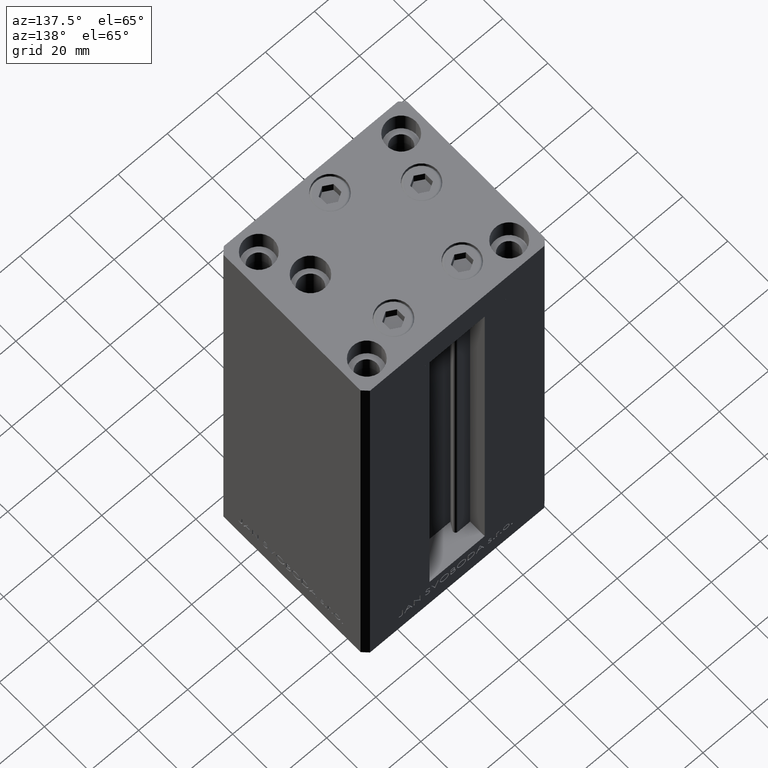
[diagram: clean part render]
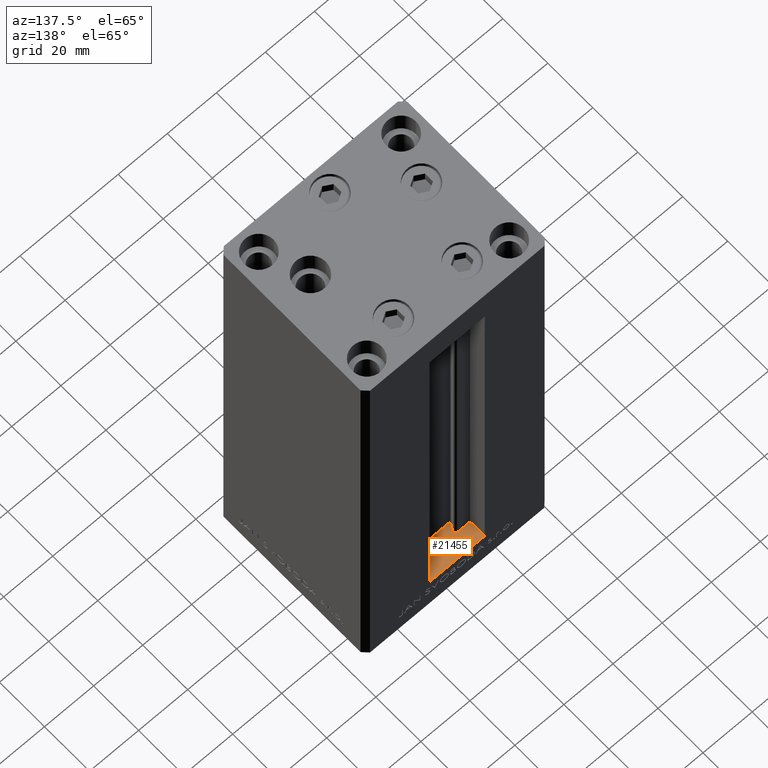
[diagram: same view with one face highlighted and labeled with its STEP entity id]
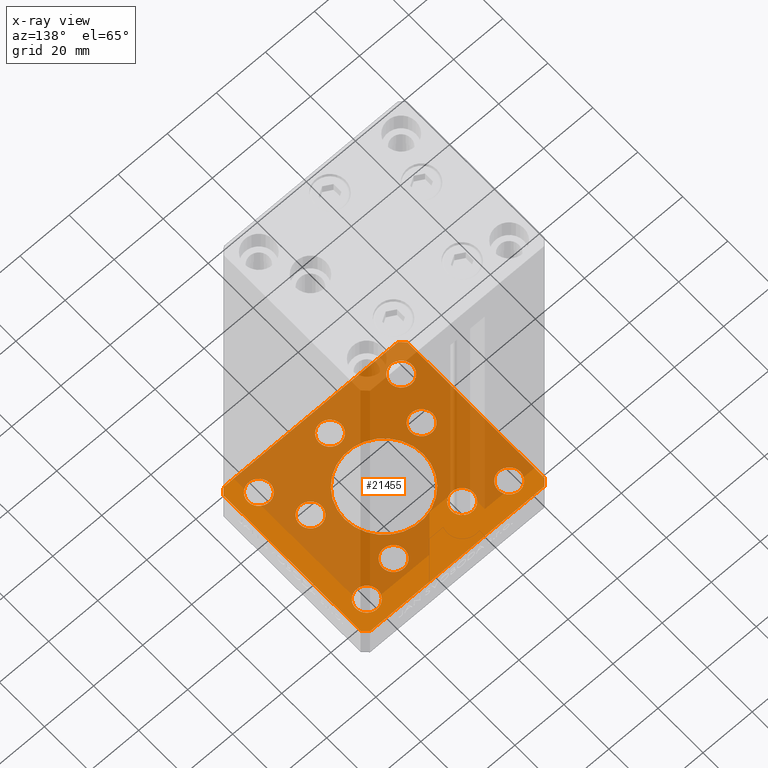
[diagram: x-ray of the same camera — body ghosted, the highlighted face saturated]
A machine part, auxiliary view. The second image highlights one B-rep face of the part: STEP entity #21455.
The next image is the same camera in x-ray: the body ghosted, the highlighted face saturated — about 74% of this face is hidden behind the body in this view.
In plain terms, the highlighted planar face has unit normal (0, 0, -1).
Its self-contained STEP definition (entity closure, byte-faithful):
#58 = FACE_BOUND ( 'NONE', #45264, .T. ) ;
#405 = LINE ( 'NONE', #15479, #14586 ) ;
#493 = DIRECTION ( 'NONE',  ( 1.000000000000000000, 0.000000000000000000, 0.000000000000000000 ) ) ;
#538 = DIRECTION ( 'NONE',  ( 1.000000000000000000, 0.000000000000000000, 0.000000000000000000 ) ) ;
#584 = CARTESIAN_POINT ( 'NONE',  ( 37.50000000000000711, 30.50000000000001421, -15.00000000000000000 ) ) ;
#716 = CARTESIAN_POINT ( 'NONE',  ( -33.50000000000000000, 24.00000000000000711, -15.00000000000000000 ) ) ;
#1000 = EDGE_CURVE ( 'NONE', #28864, #44380, #2333, .T. ) ;
#1311 = DIRECTION ( 'NONE',  ( -0.000000000000000000, 0.000000000000000000, 1.000000000000000000 ) ) ;
#1374 = EDGE_CURVE ( 'NONE', #3399, #20431, #47043, .T. ) ;
#1560 = CIRCLE ( 'NONE', #19712, 4.500000000000000888 ) ;
#1813 = CARTESIAN_POINT ( 'NONE',  ( 33.50000000000000000, -23.99999999999999645, -15.00000000000000000 ) ) ;
#1919 = CARTESIAN_POINT ( 'NONE',  ( -9.491068579633243019, 19.50000000000000000, -15.00000000000000000 ) ) ;
#2017 = CARTESIAN_POINT ( 'NONE',  ( 13.99106857963324124, 19.50000000000000000, -15.00000000000000000 ) ) ;
#2063 = CARTESIAN_POINT ( 'NONE',  ( 29.00000000000000355, -23.99999999999999645, -15.00000000000000000 ) ) ;
#2313 = LINE ( 'NONE', #32490, #36061 ) ;
#2333 = LINE ( 'NONE', #2576, #16246 ) ;
#2554 = AXIS2_PLACEMENT_3D ( 'NONE', #21299, #13357, #25726 ) ;
#2576 = CARTESIAN_POINT ( 'NONE',  ( 35.50000000000000000, 32.49999999999999289, -15.00000000000000000 ) ) ;
#2607 = DIRECTION ( 'NONE',  ( 1.000000000000000000, 0.000000000000000000, 0.000000000000000000 ) ) ;
#2804 = DIRECTION ( 'NONE',  ( 0.000000000000000000, 1.000000000000000000, 0.000000000000000000 ) ) ;
#2847 = EDGE_CURVE ( 'NONE', #4394, #12311, #13212, .T. ) ;
#2857 = FACE_BOUND ( 'NONE', #25995, .T. ) ;
#3042 = DIRECTION ( 'NONE',  ( 2.275047181608926165E-16, -1.000000000000000000, 0.000000000000000000 ) ) ;
#3103 = PLANE ( 'NONE',  #42695 ) ;
#3399 = VERTEX_POINT ( 'NONE', #4233 ) ;
#4233 = CARTESIAN_POINT ( 'NONE',  ( -24.50000000000000000, 24.00000000000000711, -15.00000000000000000 ) ) ;
#4394 = VERTEX_POINT ( 'NONE', #5548 ) ;
#4449 = CARTESIAN_POINT ( 'NONE',  ( 35.50000000000001421, -32.49999999999992184, -15.00000000000000000 ) ) ;
#4520 = EDGE_CURVE ( 'NONE', #28687, #31103, #21919, .T. ) ;
#5006 = CARTESIAN_POINT ( 'NONE',  ( -18.12741699796953654, -8.000000000000000000, -15.00000000000000000 ) ) ;
#5548 = CARTESIAN_POINT ( 'NONE',  ( -37.50000000000000000, -30.50000000000004263, -15.00000000000000000 ) ) ;
#5720 = CIRCLE ( 'NONE', #47578, 4.499999999999999112 ) ;
#5885 = ORIENTED_EDGE ( 'NONE', *, *, #37461, .T. ) ;
#5932 = CIRCLE ( 'NONE', #32788, 4.500000000000005329 ) ;
#6030 = ORIENTED_EDGE ( 'NONE', *, *, #45681, .F. ) ;
#6282 = DIRECTION ( 'NONE',  ( -1.000000000000000000, -1.954618001100627573E-16, 0.000000000000000000 ) ) ;
#6558 = FACE_BOUND ( 'NONE', #44999, .T. ) ;
#6650 = EDGE_CURVE ( 'NONE', #43270, #25952, #46453, .T. ) ;
#6709 = CARTESIAN_POINT ( 'NONE',  ( -35.50000000000000711, 32.49999999999997868, -15.00000000000000000 ) ) ;
#6716 = DIRECTION ( 'NONE',  ( 1.000000000000000000, 0.000000000000000000, 0.000000000000000000 ) ) ;
#6735 = LINE ( 'NONE', #21836, #37077 ) ;
#6780 = CARTESIAN_POINT ( 'NONE',  ( 29.00000000000000000, 24.00000000000000355, -15.00000000000000000 ) ) ;
#6801 = FACE_BOUND ( 'NONE', #41277, .T. ) ;
#7951 = DIRECTION ( 'NONE',  ( -0.000000000000000000, 0.000000000000000000, 1.000000000000000000 ) ) ;
#8126 = ORIENTED_EDGE ( 'NONE', *, *, #2847, .F. ) ;
#8153 = ORIENTED_EDGE ( 'NONE', *, *, #39964, .T. ) ;
#8305 = VERTEX_POINT ( 'NONE', #15651 ) ;
#8583 = CARTESIAN_POINT ( 'NONE',  ( -35.50000000000000711, 32.49999999999997868, -15.00000000000000000 ) ) ;
#8673 = CARTESIAN_POINT ( 'NONE',  ( 16.00000000000000000, 0.000000000000000000, -15.00000000000000000 ) ) ;
#8824 = AXIS2_PLACEMENT_3D ( 'NONE', #9150, #24243, #42075 ) ;
#9150 = CARTESIAN_POINT ( 'NONE',  ( 22.62741699796953299, -8.000000000000000000, -15.00000000000000000 ) ) ;
#9182 = VECTOR ( 'NONE', #43405, 1000.000000000000000 ) ;
#9658 = DIRECTION ( 'NONE',  ( 0.000000000000000000, -0.000000000000000000, -1.000000000000000000 ) ) ;
#9797 = ORIENTED_EDGE ( 'NONE', *, *, #41366, .F. ) ;
#10050 = EDGE_LOOP ( 'NONE', ( #25722, #41508 ) ) ;
#10278 = FACE_OUTER_BOUND ( 'NONE', #13185, .T. ) ;
#10310 = DIRECTION ( 'NONE',  ( -0.000000000000000000, 0.000000000000000000, 1.000000000000000000 ) ) ;
#10633 = EDGE_LOOP ( 'NONE', ( #8153, #23553 ) ) ;
#10734 = AXIS2_PLACEMENT_3D ( 'NONE', #29114, #10310, #18219 ) ;
#10760 = CIRCLE ( 'NONE', #44751, 4.499999999999997335 ) ;
#11292 = AXIS2_PLACEMENT_3D ( 'NONE', #41352, #22314, #11886 ) ;
#11305 = EDGE_CURVE ( 'NONE', #12311, #15944, #24862, .T. ) ;
#11373 = LINE ( 'NONE', #4449, #28186 ) ;
#11450 = CARTESIAN_POINT ( 'NONE',  ( -24.50000000000000000, -23.99999999999999645, -15.00000000000000000 ) ) ;
#11523 = AXIS2_PLACEMENT_3D ( 'NONE', #15120, #42316, #45545 ) ;
#11591 = EDGE_LOOP ( 'NONE', ( #35654, #15946 ) ) ;
#11886 = DIRECTION ( 'NONE',  ( 1.000000000000000000, 0.000000000000000000, 0.000000000000000000 ) ) ;
#12031 = AXIS2_PLACEMENT_3D ( 'NONE', #35206, #1311, #34310 ) ;
#12279 = AXIS2_PLACEMENT_3D ( 'NONE', #21008, #14080, #28925 ) ;
#12311 = VERTEX_POINT ( 'NONE', #39532 ) ;
#12525 = LINE ( 'NONE', #8583, #19355 ) ;
#12556 = CARTESIAN_POINT ( 'NONE',  ( -27.12741699796953299, -8.000000000000000000, -15.00000000000000000 ) ) ;
#12975 = CARTESIAN_POINT ( 'NONE',  ( -16.00000000000000000, 1.959434878635765131E-15, -15.00000000000000000 ) ) ;
#13032 = CIRCLE ( 'NONE', #19377, 4.499999999999999112 ) ;
#13185 = EDGE_LOOP ( 'NONE', ( #8126, #44322, #9797, #45844, #44877, #6030, #46481, #22525 ) ) ;
#13212 = LINE ( 'NONE', #28321, #9182 ) ;
#13357 = DIRECTION ( 'NONE',  ( 0.000000000000000000, -0.000000000000000000, -1.000000000000000000 ) ) ;
#13388 = CARTESIAN_POINT ( 'NONE',  ( -13.99106857963324124, 19.50000000000000000, -15.00000000000000000 ) ) ;
#14080 = DIRECTION ( 'NONE',  ( -0.000000000000000000, 0.000000000000000000, 1.000000000000000000 ) ) ;
#14225 = CARTESIAN_POINT ( 'NONE',  ( 18.12741699796953299, -8.000000000000000000, -15.00000000000000000 ) ) ;
#14226 = FACE_BOUND ( 'NONE', #16250, .T. ) ;
#14342 = CARTESIAN_POINT ( 'NONE',  ( -37.50000000000001421, 30.50000000000000000, -15.00000000000000000 ) ) ;
#14586 = VECTOR ( 'NONE', #30586, 1000.000000000000000 ) ;
#14714 = DIRECTION ( 'NONE',  ( -0.000000000000000000, 0.000000000000000000, 1.000000000000000000 ) ) ;
#15076 = DIRECTION ( 'NONE',  ( 0.000000000000000000, -0.000000000000000000, -1.000000000000000000 ) ) ;
#15120 = CARTESIAN_POINT ( 'NONE',  ( -29.00000000000000000, 24.00000000000000711, -15.00000000000000000 ) ) ;
#15479 = CARTESIAN_POINT ( 'NONE',  ( 37.50000000000000711, 30.50000000000001421, -15.00000000000000000 ) ) ;
#15579 = AXIS2_PLACEMENT_3D ( 'NONE', #44876, #33500, #32513 ) ;
#15651 = CARTESIAN_POINT ( 'NONE',  ( -33.50000000000000000, -23.99999999999999645, -15.00000000000000000 ) ) ;
#15944 = VERTEX_POINT ( 'NONE', #25342 ) ;
#15946 = ORIENTED_EDGE ( 'NONE', *, *, #18533, .F. ) ;
#16246 = VECTOR ( 'NONE', #6282, 1000.000000000000000 ) ;
#16250 = EDGE_LOOP ( 'NONE', ( #21130, #29218 ) ) ;
#16314 = AXIS2_PLACEMENT_3D ( 'NONE', #38095, #34394, #493 ) ;
#16315 = VERTEX_POINT ( 'NONE', #28627 ) ;
#16604 = ORIENTED_EDGE ( 'NONE', *, *, #1374, .T. ) ;
#17139 = DIRECTION ( 'NONE',  ( -0.000000000000000000, 0.000000000000000000, 1.000000000000000000 ) ) ;
#17166 = EDGE_CURVE ( 'NONE', #33349, #4394, #6735, .T. ) ;
#18183 = DIRECTION ( 'NONE',  ( -0.000000000000000000, 0.000000000000000000, 1.000000000000000000 ) ) ;
#18198 = CARTESIAN_POINT ( 'NONE',  ( 18.49106857963324657, 19.50000000000000000, -15.00000000000000000 ) ) ;
#18219 = DIRECTION ( 'NONE',  ( 1.000000000000000000, 0.000000000000000000, 0.000000000000000000 ) ) ;
#18337 = CIRCLE ( 'NONE', #45987, 16.00000000000000000 ) ;
#18414 = DIRECTION ( 'NONE',  ( 0.000000000000000000, -0.000000000000000000, -1.000000000000000000 ) ) ;
#18475 = EDGE_CURVE ( 'NONE', #28893, #21313, #40279, .T. ) ;
#18533 = EDGE_CURVE ( 'NONE', #8305, #38824, #1560, .T. ) ;
#18588 = CARTESIAN_POINT ( 'NONE',  ( -18.49106857963323947, 19.50000000000000000, -15.00000000000000000 ) ) ;
#18652 = CIRCLE ( 'NONE', #36825, 4.500000000000001776 ) ;
#18686 = ORIENTED_EDGE ( 'NONE', *, *, #23940, .T. ) ;
#19108 = CIRCLE ( 'NONE', #8824, 4.500000000000000888 ) ;
#19355 = VECTOR ( 'NONE', #27138, 1000.000000000000000 ) ;
#19377 = AXIS2_PLACEMENT_3D ( 'NONE', #13388, #24771, #6716 ) ;
#19484 = CARTESIAN_POINT ( 'NONE',  ( 24.50000000000000000, 24.00000000000000355, -15.00000000000000000 ) ) ;
#19536 = DIRECTION ( 'NONE',  ( 0.7071067811865463515, 0.7071067811865487940, 0.000000000000000000 ) ) ;
#19712 = AXIS2_PLACEMENT_3D ( 'NONE', #26689, #15076, #41788 ) ;
#19814 = VERTEX_POINT ( 'NONE', #35050 ) ;
#20271 = AXIS2_PLACEMENT_3D ( 'NONE', #33715, #7951, #538 ) ;
#20316 = ORIENTED_EDGE ( 'NONE', *, *, #41539, .F. ) ;
#20431 = VERTEX_POINT ( 'NONE', #716 ) ;
#21008 = CARTESIAN_POINT ( 'NONE',  ( -29.00000000000000000, 24.00000000000000711, -15.00000000000000000 ) ) ;
#21130 = ORIENTED_EDGE ( 'NONE', *, *, #18475, .F. ) ;
#21299 = CARTESIAN_POINT ( 'NONE',  ( -29.00000000000000000, -23.99999999999999645, -15.00000000000000000 ) ) ;
#21313 = VERTEX_POINT ( 'NONE', #12975 ) ;
#21455 = ADVANCED_FACE ( 'NONE', ( #14226, #36748, #21902, #28825, #6801, #6558, #2857, #40216, #10278, #58, #36501 ), #3103, .F. ) ;
#21529 = CIRCLE ( 'NONE', #2554, 4.500000000000000888 ) ;
#21727 = CARTESIAN_POINT ( 'NONE',  ( 24.50000000000000711, -23.99999999999999645, -15.00000000000000000 ) ) ;
#21836 = CARTESIAN_POINT ( 'NONE',  ( -37.50000000000001421, 30.50000000000000000, -15.00000000000000000 ) ) ;
#21902 = FACE_BOUND ( 'NONE', #10050, .T. ) ;
#21911 = VERTEX_POINT ( 'NONE', #41076 ) ;
#21919 = CIRCLE ( 'NONE', #15579, 4.500000000000001776 ) ;
#22314 = DIRECTION ( 'NONE',  ( -0.000000000000000000, 0.000000000000000000, 1.000000000000000000 ) ) ;
#22525 = ORIENTED_EDGE ( 'NONE', *, *, #11305, .F. ) ;
#23368 = AXIS2_PLACEMENT_3D ( 'NONE', #6780, #47850, #33020 ) ;
#23509 = VERTEX_POINT ( 'NONE', #584 ) ;
#23553 = ORIENTED_EDGE ( 'NONE', *, *, #6650, .T. ) ;
#23830 = CIRCLE ( 'NONE', #11292, 4.500000000000005329 ) ;
#23940 = EDGE_CURVE ( 'NONE', #42172, #19814, #19108, .T. ) ;
#24243 = DIRECTION ( 'NONE',  ( -0.000000000000000000, 0.000000000000000000, 1.000000000000000000 ) ) ;
#24448 = EDGE_LOOP ( 'NONE', ( #48714, #18686 ) ) ;
#24724 = EDGE_CURVE ( 'NONE', #19814, #42172, #32572, .T. ) ;
#24745 = DIRECTION ( 'NONE',  ( 1.000000000000000000, 0.000000000000000000, 0.000000000000000000 ) ) ;
#24771 = DIRECTION ( 'NONE',  ( -0.000000000000000000, 0.000000000000000000, 1.000000000000000000 ) ) ;
#24862 = LINE ( 'NONE', #40222, #37037 ) ;
#25122 = EDGE_CURVE ( 'NONE', #38824, #8305, #21529, .T. ) ;
#25342 = CARTESIAN_POINT ( 'NONE',  ( 35.50000000000001421, -32.49999999999992184, -15.00000000000000000 ) ) ;
#25362 = CARTESIAN_POINT ( 'NONE',  ( 0.000000000000000000, 0.000000000000000000, -15.00000000000000000 ) ) ;
#25386 = DIRECTION ( 'NONE',  ( 0.000000000000000000, -0.000000000000000000, -1.000000000000000000 ) ) ;
#25678 = EDGE_CURVE ( 'NONE', #30943, #33679, #5720, .T. ) ;
#25722 = ORIENTED_EDGE ( 'NONE', *, *, #43994, .T. ) ;
#25726 = DIRECTION ( 'NONE',  ( 1.000000000000000000, 0.000000000000000000, 0.000000000000000000 ) ) ;
#25952 = VERTEX_POINT ( 'NONE', #1813 ) ;
#25995 = EDGE_LOOP ( 'NONE', ( #34402, #20316 ) ) ;
#26485 = CARTESIAN_POINT ( 'NONE',  ( 4.500000000000001776, -24.00000000000001066, -15.00000000000000000 ) ) ;
#26689 = CARTESIAN_POINT ( 'NONE',  ( -29.00000000000000000, -23.99999999999999645, -15.00000000000000000 ) ) ;
#26826 = VERTEX_POINT ( 'NONE', #37215 ) ;
#27138 = DIRECTION ( 'NONE',  ( -0.7071067811865524577, -0.7071067811865426878, 0.000000000000000000 ) ) ;
#27841 = EDGE_CURVE ( 'NONE', #40518, #16315, #23830, .T. ) ;
#27857 = CARTESIAN_POINT ( 'NONE',  ( 0.000000000000000000, -24.00000000000001066, -15.00000000000000000 ) ) ;
#28186 = VECTOR ( 'NONE', #19536, 1000.000000000000000 ) ;
#28238 = DIRECTION ( 'NONE',  ( 1.000000000000000000, 0.000000000000000000, 0.000000000000000000 ) ) ;
#28297 = ORIENTED_EDGE ( 'NONE', *, *, #27841, .T. ) ;
#28321 = CARTESIAN_POINT ( 'NONE',  ( -37.50000000000000000, -30.50000000000004263, -15.00000000000000000 ) ) ;
#28467 = EDGE_CURVE ( 'NONE', #21313, #28893, #18337, .T. ) ;
#28627 = CARTESIAN_POINT ( 'NONE',  ( 9.491068579633235913, 19.50000000000000000, -15.00000000000000000 ) ) ;
#28687 = VERTEX_POINT ( 'NONE', #35929 ) ;
#28825 = FACE_BOUND ( 'NONE', #24448, .T. ) ;
#28864 = VERTEX_POINT ( 'NONE', #37649 ) ;
#28893 = VERTEX_POINT ( 'NONE', #8673 ) ;
#28922 = CIRCLE ( 'NONE', #11523, 4.500000000000000888 ) ;
#28925 = DIRECTION ( 'NONE',  ( 1.000000000000000000, 0.000000000000000000, 0.000000000000000000 ) ) ;
#29105 = DIRECTION ( 'NONE',  ( 1.000000000000000000, 0.000000000000000000, 0.000000000000000000 ) ) ;
#29114 = CARTESIAN_POINT ( 'NONE',  ( -22.62741699796953299, -8.000000000000000000, -15.00000000000000000 ) ) ;
#29218 = ORIENTED_EDGE ( 'NONE', *, *, #28467, .F. ) ;
#29229 = VERTEX_POINT ( 'NONE', #12556 ) ;
#29490 = VERTEX_POINT ( 'NONE', #19484 ) ;
#30586 = DIRECTION ( 'NONE',  ( -0.7071067811865524577, 0.7071067811865426878, 0.000000000000000000 ) ) ;
#30943 = VERTEX_POINT ( 'NONE', #18588 ) ;
#31103 = VERTEX_POINT ( 'NONE', #26485 ) ;
#32306 = DIRECTION ( 'NONE',  ( 1.000000000000000000, 1.172770800660376149E-15, 0.000000000000000000 ) ) ;
#32490 = CARTESIAN_POINT ( 'NONE',  ( 37.50000000000000711, -30.49999999999992895, -15.00000000000000000 ) ) ;
#32513 = DIRECTION ( 'NONE',  ( 1.000000000000000000, 0.000000000000000000, 0.000000000000000000 ) ) ;
#32572 = CIRCLE ( 'NONE', #12031, 4.500000000000000888 ) ;
#32788 = AXIS2_PLACEMENT_3D ( 'NONE', #2017, #47037, #28238 ) ;
#33020 = DIRECTION ( 'NONE',  ( 1.000000000000000000, 0.000000000000000000, 0.000000000000000000 ) ) ;
#33349 = VERTEX_POINT ( 'NONE', #14342 ) ;
#33500 = DIRECTION ( 'NONE',  ( -0.000000000000000000, 0.000000000000000000, 1.000000000000000000 ) ) ;
#33679 = VERTEX_POINT ( 'NONE', #1919 ) ;
#33715 = CARTESIAN_POINT ( 'NONE',  ( -22.62741699796953299, -8.000000000000000000, -15.00000000000000000 ) ) ;
#33959 = EDGE_CURVE ( 'NONE', #23509, #28864, #405, .T. ) ;
#34310 = DIRECTION ( 'NONE',  ( 1.000000000000000000, 0.000000000000000000, 0.000000000000000000 ) ) ;
#34394 = DIRECTION ( 'NONE',  ( -0.000000000000000000, 0.000000000000000000, 1.000000000000000000 ) ) ;
#34402 = ORIENTED_EDGE ( 'NONE', *, *, #38004, .F. ) ;
#35050 = CARTESIAN_POINT ( 'NONE',  ( 27.12741699796953654, -8.000000000000000000, -15.00000000000000000 ) ) ;
#35206 = CARTESIAN_POINT ( 'NONE',  ( 22.62741699796953299, -8.000000000000000000, -15.00000000000000000 ) ) ;
#35654 = ORIENTED_EDGE ( 'NONE', *, *, #25122, .F. ) ;
#35929 = CARTESIAN_POINT ( 'NONE',  ( -4.500000000000001776, -24.00000000000001066, -15.00000000000000000 ) ) ;
#36018 = DIRECTION ( 'NONE',  ( -0.000000000000000000, 0.000000000000000000, 1.000000000000000000 ) ) ;
#36061 = VECTOR ( 'NONE', #2804, 1000.000000000000000 ) ;
#36501 = FACE_BOUND ( 'NONE', #10633, .T. ) ;
#36748 = FACE_BOUND ( 'NONE', #48226, .T. ) ;
#36825 = AXIS2_PLACEMENT_3D ( 'NONE', #27857, #36018, #43191 ) ;
#37037 = VECTOR ( 'NONE', #32306, 1000.000000000000000 ) ;
#37077 = VECTOR ( 'NONE', #3042, 1000.000000000000000 ) ;
#37215 = CARTESIAN_POINT ( 'NONE',  ( 33.50000000000000000, 24.00000000000000355, -15.00000000000000000 ) ) ;
#37250 = ORIENTED_EDGE ( 'NONE', *, *, #44844, .T. ) ;
#37354 = ORIENTED_EDGE ( 'NONE', *, *, #37755, .T. ) ;
#37458 = CARTESIAN_POINT ( 'NONE',  ( 0.000000000000000000, 0.000000000000000000, -15.00000000000000000 ) ) ;
#37461 = EDGE_CURVE ( 'NONE', #33679, #30943, #13032, .T. ) ;
#37649 = CARTESIAN_POINT ( 'NONE',  ( 35.50000000000000000, 32.49999999999999289, -15.00000000000000000 ) ) ;
#37673 = CARTESIAN_POINT ( 'NONE',  ( 29.00000000000000000, 24.00000000000000355, -15.00000000000000000 ) ) ;
#37755 = EDGE_CURVE ( 'NONE', #38219, #29229, #38384, .T. ) ;
#38004 = EDGE_CURVE ( 'NONE', #26826, #29490, #44707, .T. ) ;
#38095 = CARTESIAN_POINT ( 'NONE',  ( 29.00000000000000355, -23.99999999999999645, -15.00000000000000000 ) ) ;
#38219 = VERTEX_POINT ( 'NONE', #5006 ) ;
#38384 = CIRCLE ( 'NONE', #10734, 4.499999999999997335 ) ;
#38716 = ORIENTED_EDGE ( 'NONE', *, *, #25678, .T. ) ;
#38824 = VERTEX_POINT ( 'NONE', #11450 ) ;
#39201 = CIRCLE ( 'NONE', #20271, 4.499999999999997335 ) ;
#39237 = EDGE_CURVE ( 'NONE', #20431, #3399, #28922, .T. ) ;
#39532 = CARTESIAN_POINT ( 'NONE',  ( -35.50000000000001421, -32.50000000000000711, -15.00000000000000000 ) ) ;
#39912 = CIRCLE ( 'NONE', #47011, 4.500000000000000888 ) ;
#39964 = EDGE_CURVE ( 'NONE', #25952, #43270, #10760, .T. ) ;
#40216 = FACE_BOUND ( 'NONE', #11591, .T. ) ;
#40222 = CARTESIAN_POINT ( 'NONE',  ( -35.50000000000001421, -32.50000000000000711, -15.00000000000000000 ) ) ;
#40279 = CIRCLE ( 'NONE', #48963, 16.00000000000000000 ) ;
#40518 = VERTEX_POINT ( 'NONE', #18198 ) ;
#41076 = CARTESIAN_POINT ( 'NONE',  ( 37.50000000000000711, -30.49999999999992895, -15.00000000000000000 ) ) ;
#41277 = EDGE_LOOP ( 'NONE', ( #28297, #44663 ) ) ;
#41311 = ORIENTED_EDGE ( 'NONE', *, *, #39237, .T. ) ;
#41352 = CARTESIAN_POINT ( 'NONE',  ( 13.99106857963324124, 19.50000000000000000, -15.00000000000000000 ) ) ;
#41366 = EDGE_CURVE ( 'NONE', #44380, #33349, #12525, .T. ) ;
#41408 = DIRECTION ( 'NONE',  ( 1.000000000000000000, 0.000000000000000000, 0.000000000000000000 ) ) ;
#41508 = ORIENTED_EDGE ( 'NONE', *, *, #4520, .T. ) ;
#41539 = EDGE_CURVE ( 'NONE', #29490, #26826, #39912, .T. ) ;
#41788 = DIRECTION ( 'NONE',  ( 1.000000000000000000, 0.000000000000000000, 0.000000000000000000 ) ) ;
#41865 = EDGE_CURVE ( 'NONE', #16315, #40518, #5932, .T. ) ;
#42075 = DIRECTION ( 'NONE',  ( 1.000000000000000000, 0.000000000000000000, 0.000000000000000000 ) ) ;
#42172 = VERTEX_POINT ( 'NONE', #14225 ) ;
#42316 = DIRECTION ( 'NONE',  ( -0.000000000000000000, 0.000000000000000000, 1.000000000000000000 ) ) ;
#42695 = AXIS2_PLACEMENT_3D ( 'NONE', #25362, #18183, #2607 ) ;
#43191 = DIRECTION ( 'NONE',  ( 1.000000000000000000, 0.000000000000000000, 0.000000000000000000 ) ) ;
#43270 = VERTEX_POINT ( 'NONE', #21727 ) ;
#43405 = DIRECTION ( 'NONE',  ( 0.7071067811865512365, -0.7071067811865439090, 0.000000000000000000 ) ) ;
#43797 = CARTESIAN_POINT ( 'NONE',  ( 0.000000000000000000, 0.000000000000000000, -15.00000000000000000 ) ) ;
#43994 = EDGE_CURVE ( 'NONE', #31103, #28687, #18652, .T. ) ;
#44322 = ORIENTED_EDGE ( 'NONE', *, *, #17166, .F. ) ;
#44380 = VERTEX_POINT ( 'NONE', #6709 ) ;
#44663 = ORIENTED_EDGE ( 'NONE', *, *, #41865, .T. ) ;
#44707 = CIRCLE ( 'NONE', #23368, 4.500000000000000888 ) ;
#44751 = AXIS2_PLACEMENT_3D ( 'NONE', #2063, #17139, #47336 ) ;
#44844 = EDGE_CURVE ( 'NONE', #29229, #38219, #39201, .T. ) ;
#44876 = CARTESIAN_POINT ( 'NONE',  ( 0.000000000000000000, -24.00000000000001066, -15.00000000000000000 ) ) ;
#44877 = ORIENTED_EDGE ( 'NONE', *, *, #33959, .F. ) ;
#44999 = EDGE_LOOP ( 'NONE', ( #5885, #38716 ) ) ;
#45264 = EDGE_LOOP ( 'NONE', ( #16604, #41311 ) ) ;
#45545 = DIRECTION ( 'NONE',  ( 1.000000000000000000, 0.000000000000000000, 0.000000000000000000 ) ) ;
#45681 = EDGE_CURVE ( 'NONE', #21911, #23509, #2313, .T. ) ;
#45844 = ORIENTED_EDGE ( 'NONE', *, *, #1000, .F. ) ;
#45987 = AXIS2_PLACEMENT_3D ( 'NONE', #37458, #18414, #41408 ) ;
#46453 = CIRCLE ( 'NONE', #16314, 4.499999999999997335 ) ;
#46481 = ORIENTED_EDGE ( 'NONE', *, *, #46883, .F. ) ;
#46883 = EDGE_CURVE ( 'NONE', #15944, #21911, #11373, .T. ) ;
#47011 = AXIS2_PLACEMENT_3D ( 'NONE', #37673, #25386, #29105 ) ;
#47037 = DIRECTION ( 'NONE',  ( -0.000000000000000000, 0.000000000000000000, 1.000000000000000000 ) ) ;
#47043 = CIRCLE ( 'NONE', #12279, 4.500000000000000888 ) ;
#47336 = DIRECTION ( 'NONE',  ( 1.000000000000000000, 0.000000000000000000, 0.000000000000000000 ) ) ;
#47578 = AXIS2_PLACEMENT_3D ( 'NONE', #48861, #14714, #48609 ) ;
#47850 = DIRECTION ( 'NONE',  ( 0.000000000000000000, -0.000000000000000000, -1.000000000000000000 ) ) ;
#48226 = EDGE_LOOP ( 'NONE', ( #37354, #37250 ) ) ;
#48609 = DIRECTION ( 'NONE',  ( 1.000000000000000000, 0.000000000000000000, 0.000000000000000000 ) ) ;
#48714 = ORIENTED_EDGE ( 'NONE', *, *, #24724, .T. ) ;
#48861 = CARTESIAN_POINT ( 'NONE',  ( -13.99106857963324124, 19.50000000000000000, -15.00000000000000000 ) ) ;
#48963 = AXIS2_PLACEMENT_3D ( 'NONE', #43797, #9658, #24745 ) ;